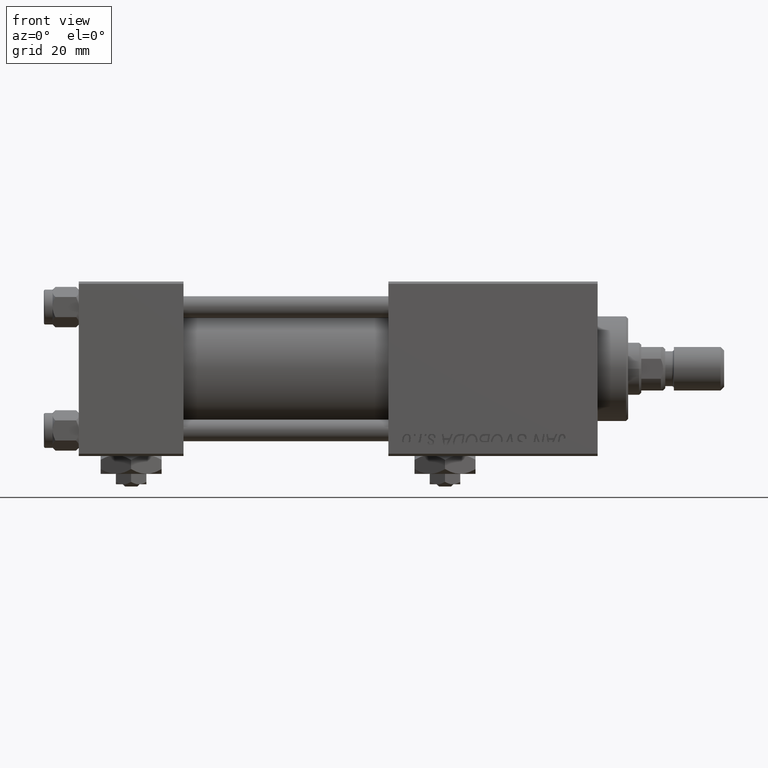
[diagram: clean part render]
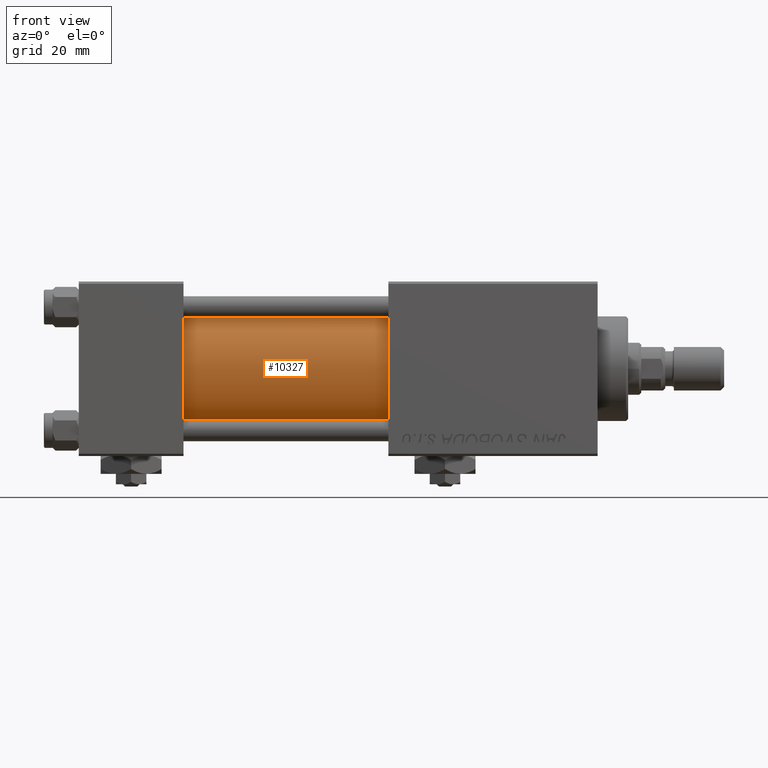
[diagram: same view with one face highlighted and labeled with its STEP entity id]
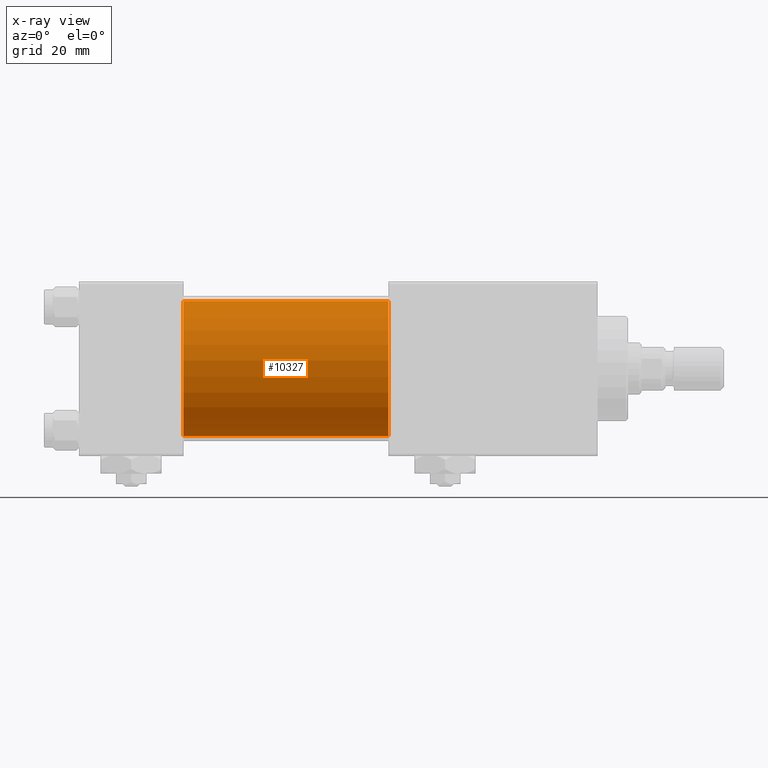
[diagram: x-ray of the same camera — body ghosted, the highlighted face saturated]
A machine part, front view. The second image highlights one B-rep face of the part: STEP entity #10327.
The next image is the same camera in x-ray: the body ghosted, the highlighted face saturated — about 0% of this face is hidden behind the body in this view.
In plain terms, the highlighted cylindrical surface (partial cylindrical patch) has radius 15.5 mm, axis along (-1, -0, -0).
Its self-contained STEP definition (entity closure, byte-faithful):
#2224 = DIRECTION ( 'NONE',  ( 1.000000000000000000, 0.000000000000000000, 0.000000000000000000 ) ) ;
#3550 = CIRCLE ( 'NONE', #29014, 15.50000000000000000 ) ;
#3594 = ORIENTED_EDGE ( 'NONE', *, *, #47903, .F. ) ;
#3872 = AXIS2_PLACEMENT_3D ( 'NONE', #45817, #25334, #50069 ) ;
#4659 = EDGE_CURVE ( 'NONE', #12665, #35717, #6467, .T. ) ;
#6309 = DIRECTION ( 'NONE',  ( -1.000000000000000000, -0.000000000000000000, -0.000000000000000000 ) ) ;
#6467 = LINE ( 'NONE', #29602, #30351 ) ;
#6923 = ORIENTED_EDGE ( 'NONE', *, *, #30423, .F. ) ;
#7591 = CARTESIAN_POINT ( 'NONE',  ( 24.00000000000000000, -2.602085213965210642E-15, 15.50000000000000000 ) ) ;
#10285 = CARTESIAN_POINT ( 'NONE',  ( 71.00000000000001421, -2.602085213965210642E-15, 0.000000000000000000 ) ) ;
#10327 = ADVANCED_FACE ( 'NONE', ( #27301 ), #46743, .T. ) ;
#12665 = VERTEX_POINT ( 'NONE', #51442 ) ;
#12938 = ORIENTED_EDGE ( 'NONE', *, *, #4659, .T. ) ;
#18447 = DIRECTION ( 'NONE',  ( 0.000000000000000000, 0.000000000000000000, 1.000000000000000000 ) ) ;
#18773 = EDGE_CURVE ( 'NONE', #35717, #36253, #3550, .T. ) ;
#18967 = CARTESIAN_POINT ( 'NONE',  ( 24.00000000000000000, -2.602085213965210642E-15, 0.000000000000000000 ) ) ;
#19369 = CARTESIAN_POINT ( 'NONE',  ( 24.00000000000000000, -7.038826752868131828E-16, -15.50000000000000000 ) ) ;
#22526 = DIRECTION ( 'NONE',  ( 0.000000000000000000, 0.000000000000000000, 1.000000000000000000 ) ) ;
#25291 = AXIS2_PLACEMENT_3D ( 'NONE', #10285, #6309, #22526 ) ;
#25334 = DIRECTION ( 'NONE',  ( 1.000000000000000000, 0.000000000000000000, 0.000000000000000000 ) ) ;
#26797 = CIRCLE ( 'NONE', #3872, 15.50000000000000000 ) ;
#27301 = FACE_OUTER_BOUND ( 'NONE', #37534, .T. ) ;
#29014 = AXIS2_PLACEMENT_3D ( 'NONE', #18967, #2224, #18447 ) ;
#29602 = CARTESIAN_POINT ( 'NONE',  ( 71.00000000000001421, -2.602085213965210642E-15, 15.50000000000000000 ) ) ;
#29739 = VECTOR ( 'NONE', #34177, 1000.000000000000000 ) ;
#29874 = DIRECTION ( 'NONE',  ( -1.000000000000000000, -0.000000000000000000, -0.000000000000000000 ) ) ;
#30351 = VECTOR ( 'NONE', #29874, 1000.000000000000000 ) ;
#30423 = EDGE_CURVE ( 'NONE', #12665, #33513, #26797, .T. ) ;
#33513 = VERTEX_POINT ( 'NONE', #38547 ) ;
#34177 = DIRECTION ( 'NONE',  ( -1.000000000000000000, -0.000000000000000000, -0.000000000000000000 ) ) ;
#35717 = VERTEX_POINT ( 'NONE', #7591 ) ;
#36253 = VERTEX_POINT ( 'NONE', #19369 ) ;
#37534 = EDGE_LOOP ( 'NONE', ( #3594, #6923, #12938, #50691 ) ) ;
#38442 = CARTESIAN_POINT ( 'NONE',  ( 71.00000000000001421, -7.038826752868131828E-16, -15.50000000000000000 ) ) ;
#38547 = CARTESIAN_POINT ( 'NONE',  ( 71.00000000000001421, -7.038826752868131828E-16, -15.50000000000000000 ) ) ;
#45817 = CARTESIAN_POINT ( 'NONE',  ( 71.00000000000001421, -2.602085213965210642E-15, 0.000000000000000000 ) ) ;
#46743 = CYLINDRICAL_SURFACE ( 'NONE', #25291, 15.50000000000000000 ) ;
#47903 = EDGE_CURVE ( 'NONE', #33513, #36253, #51462, .T. ) ;
#50069 = DIRECTION ( 'NONE',  ( 0.000000000000000000, 0.000000000000000000, -1.000000000000000000 ) ) ;
#50691 = ORIENTED_EDGE ( 'NONE', *, *, #18773, .T. ) ;
#51442 = CARTESIAN_POINT ( 'NONE',  ( 71.00000000000001421, -2.602085213965210642E-15, 15.50000000000000000 ) ) ;
#51462 = LINE ( 'NONE', #38442, #29739 ) ;